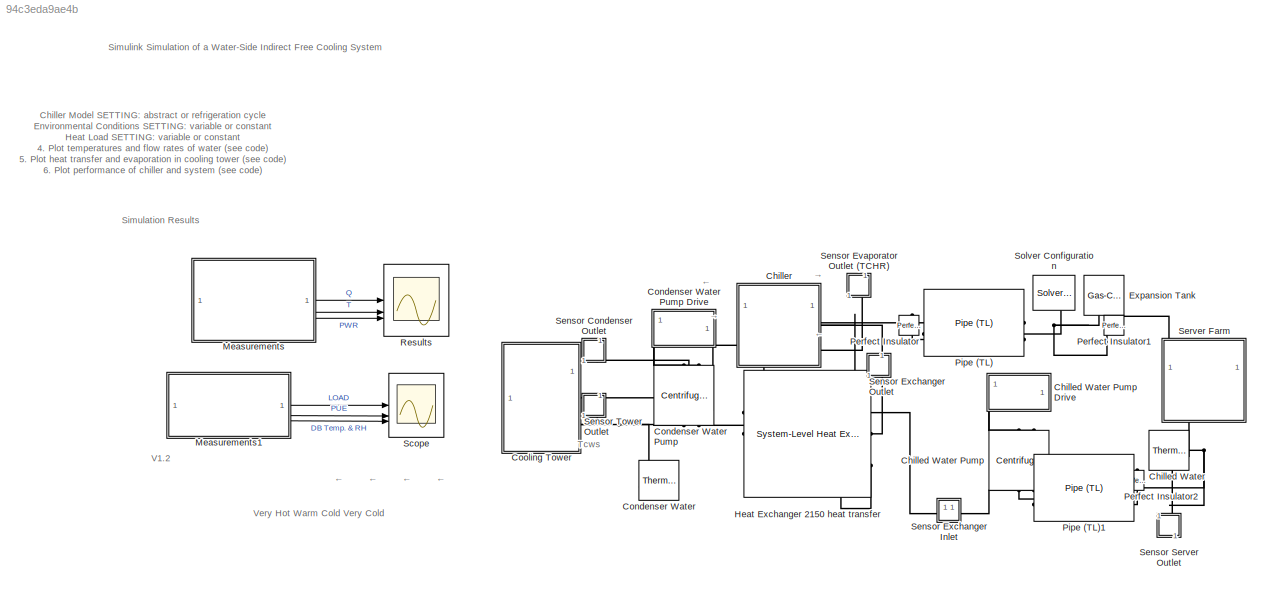
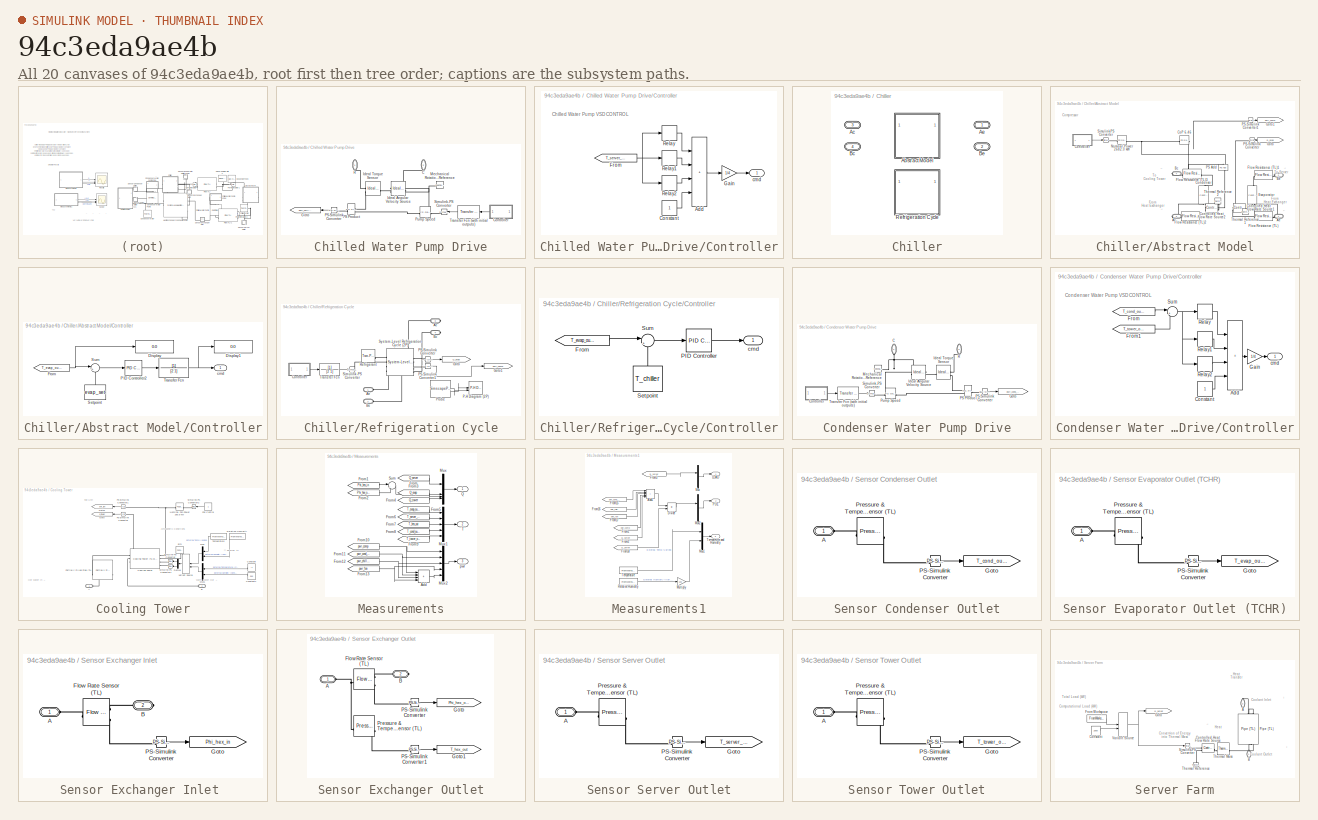
[diagram: thumbnail index - all 20 canvases of the model, root first then tree order]
MODEL slx_94c3eda9ae4b
KIND model
CONFIG AbsTol = 1e-3
CONFIG EnableMultiTasking = off
CONFIG FixedStep = auto
CONFIG MaxStep = auto
CONFIG MinStep = auto
CONFIG PreLoadFcn = load DataCenterCoolingHeatLoad.mat\nload DataCenterCoolingEnviornment.mat\n\n% Chiller Setpoint\nT_chiller = 18; % degC\n\n% Pipes\nserver_pipe_D = 0.02; % m\nserver_pipe_L = 12; % m\nserver_pipe_thickness = 0.002; % m\nserver_num_pipes = 800;\n\n% Material properties\nrho_pipe = 7800; % kg/m^3\ncp_pipe = 500; % J/(kg*K)\n\n% Total connecting port areas\nport_area = 0.2; % m^2\n\n% Cooling tower\nT_reservoir = 23; % ...<+70ch>
CONFIG RelTol = 1e-3
CONFIG SampleTimeConstraint = Unconstrained
CONFIG SolverName = VariableStepAuto
CONFIG StartTime = 0.0
CONFIG StopTime = 4.284e+05
BLOCK [Reference] Chilled Water  REF=SimscapeFluids_lib/Thermal Liquid/Utilities/Thermal Liquid
Properties (TL)
  SourceBlock = SimscapeFluids_lib/Thermal Liquid/Utilities/Thermal Liquid\nProperties (TL)
  SourceType = Thermal Liquid\nProperties (TL)
BLOCK [Reference] Chilled Water Pump  REF=SimscapeFluids_lib/Thermal Liquid/Pumps & Motors/Centrifugal Pump
(TL)
  NameLocation = left
  SourceBlock = SimscapeFluids_lib/Thermal Liquid/Pumps & Motors/Centrifugal Pump\n(TL)
  SourceType = Centrifugal Pump\n(TL)
BLOCK [SubSystem] Chilled Water Pump Drive
  NameLocation = top
  PortSchema = {"entries":[{"content":{"sides":[{"content":{},"type":"ConnectorPlacement.EquallySpacedRectSide","uuid":"edaea338-c02b-45e4-bb82-2d3d355c0ecb"},{"content":{"side":"RIGHT"},"type":"ConnectorPlacement.EquallySpacedRectSide","uuid":"dbf9c5c1-eafd-40d4-aa46-26e8ea9aa192"},{"content":{"connectorIds":["LConn1","LConn2"],"side":"TOP"},"type":"ConnectorPlacement.EquallySpacedRectSide","uuid":"608efdba-9ff...<+211ch>
BLOCK [PMIOPort] Chilled Water Pump Drive/C
  NameLocation = right
  Port = 2
  Side = Left
BLOCK [SubSystem] Chilled Water Pump Drive/Controller
BLOCK [Sum] Chilled Water Pump Drive/Controller/Add
  IconShape = rectangular
  Inputs = ++++
BLOCK [Constant] Chilled Water Pump Drive/Controller/Constant
BLOCK [From] Chilled Water Pump Drive/Controller/From
  GotoTag = T_server_outlet
  TagVisibility = global
BLOCK [Gain] Chilled Water Pump Drive/Controller/Gain
  Gain = 1/4
BLOCK [Relay] Chilled Water Pump Drive/Controller/Relay
  OffSwitchValue = cond_set*0.8571
  OnSwitchValue = cond_set
  ZeroCross = off
BLOCK [Relay] Chilled Water Pump Drive/Controller/Relay1
  OffSwitchValue = cond_set*0.7143
  OnSwitchValue = cond_set*0.8571
  ZeroCross = off
BLOCK [Relay] Chilled Water Pump Drive/Controller/Relay2
  OffSwitchValue = cond_set*0.5714
  OnSwitchValue = cond_set*0.7143
  ZeroCross = off
BLOCK [Outport] Chilled Water Pump Drive/Controller/cmd
BLOCK [Goto] Chilled Water Pump Drive/Goto
  GotoTag = pwr_chilled_water
  TagVisibility = global
BLOCK [Reference] Chilled Water Pump Drive/Ideal Angular Velocity Source  REF=fl_lib/Mechanical/Mechanical Sources/Ideal Angular
Velocity Source
  SourceBlock = fl_lib/Mechanical/Mechanical Sources/Ideal Angular\nVelocity Source
  SourceType = Ideal Angular\nVelocity Source
BLOCK [Reference] Chilled Water Pump Drive/Ideal Torque Sensor  REF=fl_lib/Mechanical/Mechanical Sensors/Ideal Torque Sensor
  SourceBlock = fl_lib/Mechanical/Mechanical Sensors/Ideal Torque Sensor
  SourceType = Ideal Torque Sensor
BLOCK [Reference] Chilled Water Pump Drive/Mechanical Rotational Reference  REF=fl_lib/Mechanical/Rotational Elements/Mechanical
Rotational Reference
  SourceBlock = fl_lib/Mechanical/Rotational Elements/Mechanical\nRotational Reference
  SourceType = Mechanical\nRotational Reference
BLOCK [Reference] Chilled Water Pump Drive/PS Product  REF=fl_lib/Physical Signals/Functions/PS Product
  SourceBlock = fl_lib/Physical Signals/Functions/PS Product
  SourceType = PS Product
BLOCK [Reference] Chilled Water Pump Drive/PS-Simulink Converter  REF=nesl_utility/PS-Simulink
Converter
  SourceBlock = nesl_utility/PS-Simulink\nConverter
  SourceType = PS-Simulink\nConverter
BLOCK [Reference] Chilled Water Pump Drive/Pump Speed  REF=fl_lib/Physical Signals/Functions/PS Gain
  SourceBlock = fl_lib/Physical Signals/Functions/PS Gain
  SourceType = PS Gain
BLOCK [PMIOPort] Chilled Water Pump Drive/R
  NameLocation = right
  Side = Left
BLOCK [Reference] Chilled Water Pump Drive/Simulink-PS Converter  REF=nesl_utility/Simulink-PS
Converter
  SourceBlock = nesl_utility/Simulink-PS\nConverter
  SourceType = Simulink-PS\nConverter
BLOCK [Reference] Chilled Water Pump Drive/Transfer Fcn (with initial outputs)  REF=simulink_extras/Additional
Linear/Transfer Fcn
(with initial outputs)
  SourceBlock = simulink_extras/Additional\nLinear/Transfer Fcn\n(with initial outputs)
  SourceType = Transfer Function with Initial Outputs
BLOCK [SubSystem] Chiller
  AttributesFormatString = %<LabelModeActiveChoice>
  LabelModeActiveChoice = abstract model
  NameLocation = top
  Variant = on
  VariantControlMode = label
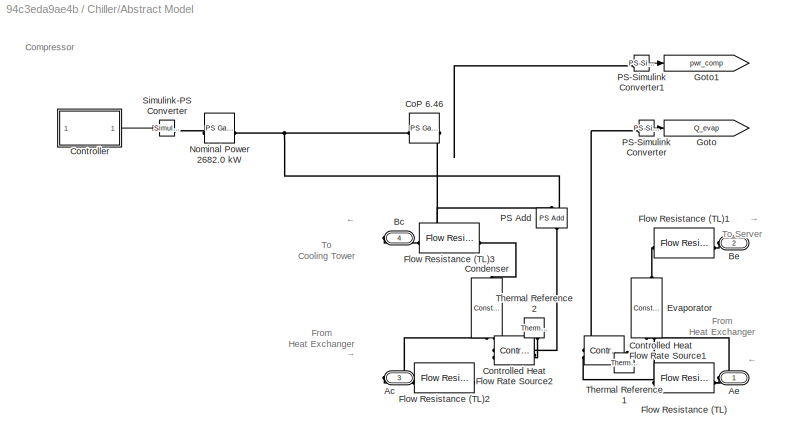
BLOCK [SubSystem] Chiller/Abstract Model
  Tag = PublishSubsystem
  VariantControl = abstract model
BLOCK [PMIOPort] Chiller/Abstract Model/Ac
  Port = 3
  Side = Right
BLOCK [PMIOPort] Chiller/Abstract Model/Ae
  Side = Left
BLOCK [PMIOPort] Chiller/Abstract Model/Bc
  NameLocation = top
  Port = 4
  Side = Right
BLOCK [PMIOPort] Chiller/Abstract Model/Be
  NameLocation = top
  Port = 2
  Side = Left
BLOCK [Reference] Chiller/Abstract Model/CoP 6.46  REF=fl_lib/Physical Signals/Functions/PS Gain
  SourceBlock = fl_lib/Physical Signals/Functions/PS Gain
  SourceType = PS Gain
BLOCK [Reference] Chiller/Abstract Model/Condenser  REF=fl_lib/Thermal Liquid/Elements/Constant Volume
Chamber (TL)
  NameLocation = left
  SourceBlock = fl_lib/Thermal Liquid/Elements/Constant Volume\nChamber (TL)
  SourceType = Constant Volume\nChamber (TL)
BLOCK [Reference] Chiller/Abstract Model/Controlled Heat Flow Rate Source1  REF=fl_lib/Thermal/Thermal Sources/Controlled Heat Flow
Rate Source
  SourceBlock = fl_lib/Thermal/Thermal Sources/Controlled Heat Flow\nRate Source
  SourceType = Controlled Heat Flow\nRate Source
BLOCK [Reference] Chiller/Abstract Model/Controlled Heat Flow Rate Source2  REF=fl_lib/Thermal/Thermal Sources/Controlled Heat Flow
Rate Source
  NameLocation = top
  SourceBlock = fl_lib/Thermal/Thermal Sources/Controlled Heat Flow\nRate Source
  SourceType = Controlled Heat Flow\nRate Source
BLOCK [SubSystem] Chiller/Abstract Model/Controller
BLOCK [Display] Chiller/Abstract Model/Controller/Display
  Decimation = 1
BLOCK [Display] Chiller/Abstract Model/Controller/Display1
  Decimation = 1
BLOCK [From] Chiller/Abstract Model/Controller/From
  GotoTag = T_evap_outlet
  TagVisibility = global
BLOCK [Reference] Chiller/Abstract Model/Controller/PID Controller2  REF=slpidlib/PID Controller
  LibrarySourceBlock = simulink/Continuous/PID Controller
  SourceBlock = slpidlib/PID Controller
  SourceType = PID 1dof
BLOCK [Constant] Chiller/Abstract Model/Controller/Setpoint
  NameLocation = right
  Value = evap_set
BLOCK [Sum] Chiller/Abstract Model/Controller/Sum
  Inputs = |+-
BLOCK [TransferFcn] Chiller/Abstract Model/Controller/Transfer Fcn
  Denominator = [2 1]
BLOCK [Outport] Chiller/Abstract Model/Controller/cmd
BLOCK [Reference] Chiller/Abstract Model/Evaporator  REF=fl_lib/Thermal Liquid/Elements/Constant Volume
Chamber (TL)
  NameLocation = right
  SourceBlock = fl_lib/Thermal Liquid/Elements/Constant Volume\nChamber (TL)
  SourceType = Constant Volume\nChamber (TL)
BLOCK [Reference] Chiller/Abstract Model/Flow Resistance (TL)  REF=fl_lib/Thermal Liquid/Elements/Flow Resistance (TL)
  NameLocation = top
  SourceBlock = fl_lib/Thermal Liquid/Elements/Flow Resistance (TL)
  SourceType = Flow Resistance (TL)
BLOCK [Reference] Chiller/Abstract Model/Flow Resistance (TL)1  REF=fl_lib/Thermal Liquid/Elements/Flow Resistance (TL)
  NameLocation = top
  SourceBlock = fl_lib/Thermal Liquid/Elements/Flow Resistance (TL)
  SourceType = Flow Resistance (TL)
BLOCK [Reference] Chiller/Abstract Model/Flow Resistance (TL)2  REF=fl_lib/Thermal Liquid/Elements/Flow Resistance (TL)
  NameLocation = top
  SourceBlock = fl_lib/Thermal Liquid/Elements/Flow Resistance (TL)
  SourceType = Flow Resistance (TL)
BLOCK [Reference] Chiller/Abstract Model/Flow Resistance (TL)3  REF=fl_lib/Thermal Liquid/Elements/Flow Resistance (TL)
  NameLocation = top
  SourceBlock = fl_lib/Thermal Liquid/Elements/Flow Resistance (TL)
  SourceType = Flow Resistance (TL)
BLOCK [Goto] Chiller/Abstract Model/Goto
  GotoTag = Q_evap
  TagVisibility = global
BLOCK [Goto] Chiller/Abstract Model/Goto1
  GotoTag = pwr_comp
  TagVisibility = global
BLOCK [Reference] Chiller/Abstract Model/Nominal Power 2682.0 kW  REF=fl_lib/Physical Signals/Functions/PS Gain
  SourceBlock = fl_lib/Physical Signals/Functions/PS Gain
  SourceType = PS Gain
BLOCK [Reference] Chiller/Abstract Model/PS Add  REF=fl_lib/Physical Signals/Functions/PS Add
  NameLocation = left
  SourceBlock = fl_lib/Physical Signals/Functions/PS Add
  SourceType = PS Add
BLOCK [Reference] Chiller/Abstract Model/PS-Simulink Converter  REF=nesl_utility/PS-Simulink
Converter
  SourceBlock = nesl_utility/PS-Simulink\nConverter
  SourceType = PS-Simulink\nConverter
BLOCK [Reference] Chiller/Abstract Model/PS-Simulink Converter1  REF=nesl_utility/PS-Simulink
Converter
  SourceBlock = nesl_utility/PS-Simulink\nConverter
  SourceType = PS-Simulink\nConverter
BLOCK [Reference] Chiller/Abstract Model/Simulink-PS Converter  REF=nesl_utility/Simulink-PS
Converter
  SourceBlock = nesl_utility/Simulink-PS\nConverter
  SourceType = Simulink-PS\nConverter
BLOCK [Reference] Chiller/Abstract Model/Thermal Reference1  REF=fl_lib/Thermal/Thermal Elements/Thermal Reference
  NameLocation = right
  SourceBlock = fl_lib/Thermal/Thermal Elements/Thermal Reference
  SourceType = Thermal Reference
BLOCK [Reference] Chiller/Abstract Model/Thermal Reference2  REF=fl_lib/Thermal/Thermal Elements/Thermal Reference
  NameLocation = left
  SourceBlock = fl_lib/Thermal/Thermal Elements/Thermal Reference
  SourceType = Thermal Reference
BLOCK [PMIOPort] Chiller/Ac
  NameLocation = top
  Port = 3
  Side = Right
BLOCK [PMIOPort] Chiller/Ae
  NameLocation = top
  Side = Left
BLOCK [PMIOPort] Chiller/Bc
  NameLocation = top
  Port = 4
  Side = Right
BLOCK [PMIOPort] Chiller/Be
  NameLocation = top
  Port = 2
  Side = Left
BLOCK [SubSystem] Chiller/Refrigeration Cycle
  Tag = PublishSubsystem
  VariantControl = refrigeration cycle
BLOCK [PMIOPort] Chiller/Refrigeration Cycle/Ac
  Port = 3
  Side = Right
BLOCK [PMIOPort] Chiller/Refrigeration Cycle/Ae
  Side = Left
BLOCK [PMIOPort] Chiller/Refrigeration Cycle/Bc
  Port = 4
  Side = Right
BLOCK [PMIOPort] Chiller/Refrigeration Cycle/Be
  Port = 2
  Side = Left
BLOCK [SubSystem] Chiller/Refrigeration Cycle/Controller
BLOCK [From] Chiller/Refrigeration Cycle/Controller/From
  GotoTag = T_evap_outlet
  TagVisibility = global
BLOCK [Reference] Chiller/Refrigeration Cycle/Controller/PID Controller  REF=slpidlib/PID Controller
  LibrarySourceBlock = simulink/Continuous/PID Controller
  SourceBlock = slpidlib/PID Controller
  SourceType = PID 1dof
BLOCK [Constant] Chiller/Refrigeration Cycle/Controller/Setpoint
  NameLocation = right
  Value = T_chiller
BLOCK [Sum] Chiller/Refrigeration Cycle/Controller/Sum
  Inputs = |+-
BLOCK [Outport] Chiller/Refrigeration Cycle/Controller/cmd
BLOCK [Goto] Chiller/Refrigeration Cycle/Goto
  GotoTag = Q_evap
  TagVisibility = global
BLOCK [Goto] Chiller/Refrigeration Cycle/Goto1
  GotoTag = pwr_comp
  TagVisibility = global
BLOCK [Reference] Chiller/Refrigeration Cycle/P-H Diagram (2P)  REF=SimscapeFluids_lib/Two-Phase Fluid/Utilities/P-H Diagram (2P)
  SourceBlock = SimscapeFluids_lib/Two-Phase Fluid/Utilities/P-H Diagram (2P)
  SourceType = P-H Diagram (2P)
  UserDataPersistent = on
BLOCK [Reference] Chiller/Refrigeration Cycle/PS-Simulink Converter  REF=nesl_utility/PS-Simulink
Converter
  SourceBlock = nesl_utility/PS-Simulink\nConverter
  SourceType = PS-Simulink\nConverter
BLOCK [Reference] Chiller/Refrigeration Cycle/PS-Simulink Converter1  REF=nesl_utility/PS-Simulink
Converter
  SourceBlock = nesl_utility/PS-Simulink\nConverter
  SourceType = PS-Simulink\nConverter
BLOCK [SimscapeProbe] Chiller/Refrigeration Cycle/Probe
  BoundBlock = 48
  Variables = {h_cycle, p_cycle}
BLOCK [Reference] Chiller/Refrigeration Cycle/Refrigerant  REF=SimscapeFluids_lib/Two-Phase Fluid/Utilities/Two-Phase Fluid
Predefined
Properties (2P)
  SourceBlock = SimscapeFluids_lib/Two-Phase Fluid/Utilities/Two-Phase Fluid\nPredefined\nProperties (2P)
  SourceType = Two-Phase Fluid\nPredefined\nProperties (2P)
BLOCK [Reference] Chiller/Refrigeration Cycle/Simulink-PS Converter  REF=nesl_utility/Simulink-PS
Converter
  SourceBlock = nesl_utility/Simulink-PS\nConverter
  SourceType = Simulink-PS\nConverter
BLOCK [Reference] Chiller/Refrigeration Cycle/System-Level Refrigeration Cycle (2P)  REF=SimscapeFluids_lib/Two-Phase Fluid/Thermodynamic Cycles/System-Level
Refrigeration Cycle
(2P)
  SourceBlock = SimscapeFluids_lib/Two-Phase Fluid/Thermodynamic Cycles/System-Level\nRefrigeration Cycle\n(2P)
  SourceType = System-Level\nRefrigeration Cycle\n(2P)
BLOCK [TransferFcn] Chiller/Refrigeration Cycle/Transfer Fcn
  Denominator = [2 1]
BLOCK [Reference] Condenser Water  REF=SimscapeFluids_lib/Thermal Liquid/Utilities/Thermal Liquid
Properties (TL)
  SourceBlock = SimscapeFluids_lib/Thermal Liquid/Utilities/Thermal Liquid\nProperties (TL)
  SourceType = Thermal Liquid\nProperties (TL)
BLOCK [Reference] Condenser Water Pump  REF=SimscapeFluids_lib/Thermal Liquid/Pumps & Motors/Centrifugal Pump
(TL)
  NameLocation = left
  SourceBlock = SimscapeFluids_lib/Thermal Liquid/Pumps & Motors/Centrifugal Pump\n(TL)
  SourceType = Centrifugal Pump\n(TL)
BLOCK [SubSystem] Condenser Water Pump Drive
  NameLocation = top
  PortSchema = {"entries":[{"content":{"sides":[{"content":{},"type":"ConnectorPlacement.EquallySpacedRectSide","uuid":"edaea338-c02b-45e4-bb82-2d3d355c0ecb"},{"content":{"side":"RIGHT"},"type":"ConnectorPlacement.EquallySpacedRectSide","uuid":"dbf9c5c1-eafd-40d4-aa46-26e8ea9aa192"},{"content":{"connectorIds":["LConn1","LConn2"],"side":"TOP"},"type":"ConnectorPlacement.EquallySpacedRectSide","uuid":"608efdba-9ff...<+211ch>
BLOCK [PMIOPort] Condenser Water Pump Drive/C
  NameLocation = right
  Side = Left
BLOCK [SubSystem] Condenser Water Pump Drive/Controller
BLOCK [Sum] Condenser Water Pump Drive/Controller/Add
  IconShape = rectangular
  Inputs = ++++
BLOCK [Constant] Condenser Water Pump Drive/Controller/Constant
BLOCK [From] Condenser Water Pump Drive/Controller/From
  GotoTag = T_cond_outlet
  TagVisibility = global
BLOCK [From] Condenser Water Pump Drive/Controller/From1
  GotoTag = T_tower_outlet
  TagVisibility = global
BLOCK [Gain] Condenser Water Pump Drive/Controller/Gain
  Gain = 1/4
BLOCK [Relay] Condenser Water Pump Drive/Controller/Relay
  OffSwitchValue = 0.667*(cond_set - (evap_set+0.4*(cond_set-evap_set)))
  OnSwitchValue = cond_set - (evap_set+0.4*(cond_set-evap_set))
  ZeroCross = off
BLOCK [Relay] Condenser Water Pump Drive/Controller/Relay1
  OffSwitchValue = 0.333*(cond_set - (evap_set+0.4*(cond_set-evap_set)))
  OnSwitchValue = 0.667*(cond_set - (evap_set+0.4*(cond_set-evap_set)))
  ZeroCross = off
BLOCK [Relay] Condenser Water Pump Drive/Controller/Relay2
  OffSwitchValue = 0
  OnSwitchValue = 0.333*(cond_set - (evap_set+0.4*(cond_set-evap_set)))
  ZeroCross = off
BLOCK [Sum] Condenser Water Pump Drive/Controller/Sum
  Inputs = |+-
BLOCK [Outport] Condenser Water Pump Drive/Controller/cmd
BLOCK [Goto] Condenser Water Pump Drive/Goto
  GotoTag = pwr_cond_water
  TagVisibility = global
BLOCK [Reference] Condenser Water Pump Drive/Ideal Angular Velocity Source  REF=fl_lib/Mechanical/Mechanical Sources/Ideal Angular
Velocity Source
  SourceBlock = fl_lib/Mechanical/Mechanical Sources/Ideal Angular\nVelocity Source
  SourceType = Ideal Angular\nVelocity Source
BLOCK [Reference] Condenser Water Pump Drive/Ideal Torque Sensor  REF=fl_lib/Mechanical/Mechanical Sensors/Ideal Torque Sensor
  SourceBlock = fl_lib/Mechanical/Mechanical Sensors/Ideal Torque Sensor
  SourceType = Ideal Torque Sensor
BLOCK [Reference] Condenser Water Pump Drive/Mechanical Rotational Reference  REF=fl_lib/Mechanical/Rotational Elements/Mechanical
Rotational Reference
  SourceBlock = fl_lib/Mechanical/Rotational Elements/Mechanical\nRotational Reference
  SourceType = Mechanical\nRotational Reference
BLOCK [Reference] Condenser Water Pump Drive/PS Product  REF=fl_lib/Physical Signals/Functions/PS Product
  SourceBlock = fl_lib/Physical Signals/Functions/PS Product
  SourceType = PS Product
BLOCK [Reference] Condenser Water Pump Drive/PS-Simulink Converter  REF=nesl_utility/PS-Simulink
Converter
  SourceBlock = nesl_utility/PS-Simulink\nConverter
  SourceType = PS-Simulink\nConverter
BLOCK [Reference] Condenser Water Pump Drive/Pump Speed  REF=fl_lib/Physical Signals/Functions/PS Gain
  SourceBlock = fl_lib/Physical Signals/Functions/PS Gain
  SourceType = PS Gain
BLOCK [PMIOPort] Condenser Water Pump Drive/R
  NameLocation = right
  Port = 2
  Side = Left
BLOCK [Reference] Condenser Water Pump Drive/Simulink-PS Converter  REF=nesl_utility/Simulink-PS
Converter
  SourceBlock = nesl_utility/Simulink-PS\nConverter
  SourceType = Simulink-PS\nConverter
BLOCK [Reference] Condenser Water Pump Drive/Transfer Fcn (with initial outputs)  REF=simulink_extras/Additional
Linear/Transfer Fcn
(with initial outputs)
  SourceBlock = simulink_extras/Additional\nLinear/Transfer Fcn\n(with initial outputs)
  SourceType = Transfer Function with Initial Outputs
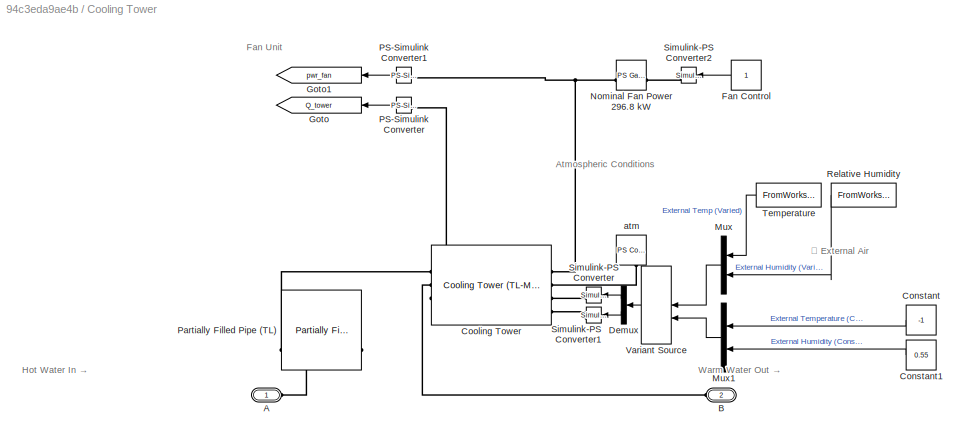
BLOCK [SubSystem] Cooling Tower
  AttributesFormatString = variable environment
  InitFcn = set_param(gcb, 'AttributesFormatString', get_param([gcb '/Variant Source'], 'LabelModeActiveChoice'))
  Tag = PublishSubsystem
BLOCK [PMIOPort] Cooling Tower/A
  Side = Left
BLOCK [PMIOPort] Cooling Tower/B
  Port = 2
  Side = Left
BLOCK [Constant] Cooling Tower/Constant
  Value = -1
BLOCK [Constant] Cooling Tower/Constant1
  Value = 0.55
BLOCK [Reference] Cooling Tower/Cooling Tower  REF=SimscapeFluids_lib/Heat Exchangers/Thermal Liquid -
Moist Air/Cooling Tower
(TL-MA)
  SourceBlock = SimscapeFluids_lib/Heat Exchangers/Thermal Liquid -\nMoist Air/Cooling Tower\n(TL-MA)
  SourceType = Cooling Tower\n(TL-MA)
BLOCK [Demux] Cooling Tower/Demux
  Outputs = 2
BLOCK [Constant] Cooling Tower/Fan Control
BLOCK [Goto] Cooling Tower/Goto
  GotoTag = Q_tower
  TagVisibility = global
BLOCK [Goto] Cooling Tower/Goto1
  GotoTag = pwr_fan
  TagVisibility = global
BLOCK [Mux] Cooling Tower/Mux
  DisplayOption = bar
  Inputs = 2
BLOCK [Mux] Cooling Tower/Mux1
  DisplayOption = bar
  Inputs = 2
BLOCK [Reference] Cooling Tower/Nominal Fan Power 296.8 kW  REF=fl_lib/Physical Signals/Functions/PS Gain
  SourceBlock = fl_lib/Physical Signals/Functions/PS Gain
  SourceType = PS Gain
BLOCK [Reference] Cooling Tower/PS-Simulink Converter  REF=nesl_utility/PS-Simulink
Converter
  SourceBlock = nesl_utility/PS-Simulink\nConverter
  SourceType = PS-Simulink\nConverter
BLOCK [Reference] Cooling Tower/PS-Simulink Converter1  REF=nesl_utility/PS-Simulink
Converter
  SourceBlock = nesl_utility/PS-Simulink\nConverter
  SourceType = PS-Simulink\nConverter
BLOCK [Reference] Cooling Tower/Partially Filled Pipe (TL)  REF=SimscapeFluids_lib/Thermal Liquid/Pipes & Fittings/Partially Filled
Pipe (TL)
  SourceBlock = SimscapeFluids_lib/Thermal Liquid/Pipes & Fittings/Partially Filled\nPipe (TL)
  SourceType = Partially Filled\nPipe (TL)
BLOCK [FromWorkspace] Cooling Tower/Relative Humidity
  NameLocation = right
  OutputAfterFinalValue = Holding final value
  VariableName = environment(:,2)
BLOCK [Reference] Cooling Tower/Simulink-PS Converter  REF=nesl_utility/Simulink-PS
Converter
  SourceBlock = nesl_utility/Simulink-PS\nConverter
  SourceType = Simulink-PS\nConverter
BLOCK [Reference] Cooling Tower/Simulink-PS Converter1  REF=nesl_utility/Simulink-PS
Converter
  SourceBlock = nesl_utility/Simulink-PS\nConverter
  SourceType = Simulink-PS\nConverter
BLOCK [Reference] Cooling Tower/Simulink-PS Converter2  REF=nesl_utility/Simulink-PS
Converter
  SourceBlock = nesl_utility/Simulink-PS\nConverter
  SourceType = Simulink-PS\nConverter
BLOCK [FromWorkspace] Cooling Tower/Temperature
  NameLocation = right
  OutputAfterFinalValue = Holding final value
  VariableName = environment(:,1)
BLOCK [VariantSource] Cooling Tower/Variant Source
  AttributesFormatString = %<LabelModeActiveChoice>
  LabelModeActiveChoice = variable environment
  VariantControlMode = label
BLOCK [Reference] Cooling Tower/atm  REF=fl_lib/Physical Signals/Sources/PS Constant
  NameLocation = right
  SourceBlock = fl_lib/Physical Signals/Sources/PS Constant
  SourceType = PS Constant
BLOCK [Reference] Expansion Tank  REF=SimscapeFluids_lib/Thermal Liquid/Tanks & Accumulators/Gas-Charged
Accumulator (TL)
  NameLocation = top
  SourceBlock = SimscapeFluids_lib/Thermal Liquid/Tanks & Accumulators/Gas-Charged\nAccumulator (TL)
  SourceType = Gas-Charged\nAccumulator (TL)
BLOCK [Reference] Heat Exchanger 2150 heat transfer  REF=SimscapeFluids_lib/Heat Exchangers/Thermal Liquid/System-Level Heat
Exchanger (TL-TL)
  SourceBlock = SimscapeFluids_lib/Heat Exchangers/Thermal Liquid/System-Level Heat\nExchanger (TL-TL)
  SourceType = System-Level Heat\nExchanger (TL-TL)
BLOCK [SubSystem] Measurements
BLOCK [Sum] Measurements/Add
  IconShape = rectangular
  Inputs = ++++
BLOCK [From] Measurements/From
  GotoTag = Q_server
  TagVisibility = global
BLOCK [From] Measurements/From1
  GotoTag = Phi_hex_in
  TagVisibility = global
BLOCK [From] Measurements/From10
  GotoTag = pwr_comp
  TagVisibility = global
BLOCK [From] Measurements/From11
  GotoTag = pwr_cond_water
  TagVisibility = global
BLOCK [From] Measurements/From12
  GotoTag = pwr_chilled_water
  TagVisibility = global
BLOCK [From] Measurements/From13
  GotoTag = pwr_fan
  TagVisibility = global
BLOCK [From] Measurements/From2
  GotoTag = Phi_hex_out
  TagVisibility = global
BLOCK [From] Measurements/From3
  GotoTag = Q_evap
  TagVisibility = global
BLOCK [From] Measurements/From4
  GotoTag = Q_tower
  TagVisibility = global
BLOCK [From] Measurements/From5
  GotoTag = T_evap_outlet
  TagVisibility = global
BLOCK [From] Measurements/From6
  GotoTag = T_server_outlet
  TagVisibility = global
BLOCK [From] Measurements/From7
  GotoTag = T_hex_out
  TagVisibility = global
BLOCK [From] Measurements/From8
  GotoTag = T_cond_outlet
  TagVisibility = global
BLOCK [From] Measurements/From9
  GotoTag = T_tower_outlet
  TagVisibility = global
BLOCK [Mux] Measurements/Mux
  DisplayOption = bar
BLOCK [Mux] Measurements/Mux1
  DisplayOption = bar
  Inputs = 5
BLOCK [Mux] Measurements/Mux2
  DisplayOption = bar
  Inputs = 5
BLOCK [Outport] Measurements/Q
BLOCK [Sum] Measurements/Sum
  Inputs = |+-
BLOCK [Outport] Measurements/T
  Port = 2
BLOCK [Outport] Measurements/pwr
  Port = 3
BLOCK [SubSystem] Measurements1
BLOCK [Sum] Measurements1/Add1
  IconShape = rectangular
  Inputs = +++++
BLOCK [Product] Measurements1/Divide
  Inputs = */
BLOCK [From] Measurements1/From1
  GotoTag = pwr_comp
  TagVisibility = global
BLOCK [From] Measurements1/From14
  GotoTag = Q_server
  TagVisibility = global
BLOCK [From] Measurements1/From15
  GotoTag = pwr_cond_water
  TagVisibility = global
BLOCK [From] Measurements1/From16
  GotoTag = pwr_chilled_water
  TagVisibility = global
BLOCK [From] Measurements1/From17
  GotoTag = pwr_fan
  TagVisibility = global
BLOCK [From] Measurements1/From2
  GotoTag = Q_server
  TagVisibility = global
BLOCK [From] Measurements1/From3
  GotoTag = Q_server
  TagVisibility = global
BLOCK [Outport] Measurements1/LOAD
BLOCK [Gain] Measurements1/Multiply
  Gain = 100
BLOCK [Mux] Measurements1/Mux
  DisplayOption = bar
  Inputs = 1
BLOCK [Mux] Measurements1/Mux1
  DisplayOption = bar
  Inputs = 2
BLOCK [Mux] Measurements1/Mux2
  DisplayOption = bar
  Inputs = 1
BLOCK [Outport] Measurements1/PUE
  Port = 2
BLOCK [FromWorkspace] Measurements1/Relative Humidity
  NameLocation = left
  OutputAfterFinalValue = Holding final value
  VariableName = environment(:,2)
BLOCK [FromWorkspace] Measurements1/Temperature
  NameLocation = left
  OutputAfterFinalValue = Holding final value
  VariableName = environment(:,1)
BLOCK [Outport] Measurements1/Temperature and Humidity
  Port = 3
BLOCK [Reference] Perfect Insulator  REF=fl_lib/Thermal/Thermal Elements/Perfect Insulator
  NameLocation = left
  SourceBlock = fl_lib/Thermal/Thermal Elements/Perfect Insulator
  SourceType = Perfect Insulator
BLOCK [Reference] Perfect Insulator1  REF=fl_lib/Thermal/Thermal Elements/Perfect Insulator
  NameLocation = right
  SourceBlock = fl_lib/Thermal/Thermal Elements/Perfect Insulator
  SourceType = Perfect Insulator
BLOCK [Reference] Perfect Insulator2  REF=fl_lib/Thermal/Thermal Elements/Perfect Insulator
  NameLocation = right
  SourceBlock = fl_lib/Thermal/Thermal Elements/Perfect Insulator
  SourceType = Perfect Insulator
BLOCK [Reference] Pipe (TL)  REF=SimscapeFluids_lib/Thermal Liquid/Pipes & Fittings/Pipe (TL)
  NameLocation = top
  SourceBlock = SimscapeFluids_lib/Thermal Liquid/Pipes & Fittings/Pipe (TL)
  SourceType = Pipe (TL)
BLOCK [Reference] Pipe (TL)1  REF=SimscapeFluids_lib/Thermal Liquid/Pipes & Fittings/Pipe (TL)
  NameLocation = top
  SourceBlock = SimscapeFluids_lib/Thermal Liquid/Pipes & Fittings/Pipe (TL)
  SourceType = Pipe (TL)
BLOCK [Scope] Results
  AttributesFormatString = Time = %<XLabel>
  Floating = off
  NumInputPorts = 3
  ScopeSpecificationString = Simulink.scopes.TimeScopeBlockCfg('CurrentConfiguration', extmgr.ConfigurationSet(extmgr.Configuration('Core','General UI',true,'FigureColor',[1 1 1]),extmgr.Configuration('Core','Source UI',true),extmgr.Configuration('Sources','WiredSimulink',true,'DataLogging',true,'DataLoggingVariableName','Scope1DataQTpwr'),extmgr.Configuration('Visuals','Time Domain',true,'SerializedDisplays',{struct('MinYLim...<+4990ch>
  Tag = PublishScope
BLOCK [Scope] Scope
  Floating = off
  NumInputPorts = 3
  ScopeSpecificationString = Simulink.scopes.TimeScopeBlockCfg('CurrentConfiguration', extmgr.ConfigurationSet(extmgr.Configuration('Core','General UI',true,'FigureColor',[1 1 1]),extmgr.Configuration('Core','Source UI',true),extmgr.Configuration('Sources','WiredSimulink',true,'DataLoggingVariableName','ScopeData1'),extmgr.Configuration('Visuals','Time Domain',true,'SerializedDisplays',{struct('MinYLimReal','1050.00000','MaxY...<+3706ch>
BLOCK [SubSystem] Sensor Condenser Outlet
  NameLocation = right
BLOCK [PMIOPort] Sensor Condenser Outlet/A
  Side = Left
BLOCK [Goto] Sensor Condenser Outlet/Goto
  GotoTag = T_cond_outlet
  TagVisibility = global
BLOCK [Reference] Sensor Condenser Outlet/PS-Simulink Converter  REF=nesl_utility/PS-Simulink
Converter
  SourceBlock = nesl_utility/PS-Simulink\nConverter
  SourceType = PS-Simulink\nConverter
BLOCK [Reference] Sensor Condenser Outlet/Pressure & Temperature Sensor (TL)  REF=fl_lib/Thermal Liquid/Sensors/Pressure &
Temperature Sensor
(TL)
  SourceBlock = fl_lib/Thermal Liquid/Sensors/Pressure &\nTemperature Sensor\n(TL)
  SourceType = Pressure &\nTemperature Sensor\n(TL)
BLOCK [SubSystem] Sensor Evaporator Outlet (TCHR)
  NameLocation = right
BLOCK [PMIOPort] Sensor Evaporator Outlet (TCHR)/A
  Side = Left
BLOCK [Goto] Sensor Evaporator Outlet (TCHR)/Goto
  GotoTag = T_evap_outlet
  TagVisibility = global
BLOCK [Reference] Sensor Evaporator Outlet (TCHR)/PS-Simulink Converter  REF=nesl_utility/PS-Simulink
Converter
  SourceBlock = nesl_utility/PS-Simulink\nConverter
  SourceType = PS-Simulink\nConverter
BLOCK [Reference] Sensor Evaporator Outlet (TCHR)/Pressure & Temperature Sensor (TL)  REF=fl_lib/Thermal Liquid/Sensors/Pressure &
Temperature Sensor
(TL)
  SourceBlock = fl_lib/Thermal Liquid/Sensors/Pressure &\nTemperature Sensor\n(TL)
  SourceType = Pressure &\nTemperature Sensor\n(TL)
BLOCK [SubSystem] Sensor Exchanger Inlet 
BLOCK [PMIOPort] Sensor Exchanger Inlet /A
  Side = Left
BLOCK [PMIOPort] Sensor Exchanger Inlet /B
  Port = 2
  Side = Right
BLOCK [Reference] Sensor Exchanger Inlet /Flow Rate Sensor (TL)  REF=fl_lib/Thermal Liquid/Sensors/Flow Rate Sensor
(TL)
  SourceBlock = fl_lib/Thermal Liquid/Sensors/Flow Rate Sensor\n(TL)
  SourceType = Flow Rate Sensor\n(TL)
BLOCK [Goto] Sensor Exchanger Inlet /Goto
  GotoTag = Phi_hex_in
  TagVisibility = global
BLOCK [Reference] Sensor Exchanger Inlet /PS-Simulink Converter  REF=nesl_utility/PS-Simulink
Converter
  SourceBlock = nesl_utility/PS-Simulink\nConverter
  SourceType = PS-Simulink\nConverter
BLOCK [SubSystem] Sensor Exchanger Outlet
  NameLocation = left
BLOCK [PMIOPort] Sensor Exchanger Outlet/A
  Side = Left
BLOCK [PMIOPort] Sensor Exchanger Outlet/B
  Port = 2
  Side = Right
BLOCK [Reference] Sensor Exchanger Outlet/Flow Rate Sensor (TL)  REF=fl_lib/Thermal Liquid/Sensors/Flow Rate Sensor
(TL)
  SourceBlock = fl_lib/Thermal Liquid/Sensors/Flow Rate Sensor\n(TL)
  SourceType = Flow Rate Sensor\n(TL)
BLOCK [Goto] Sensor Exchanger Outlet/Goto
  GotoTag = Phi_hex_out
  TagVisibility = global
BLOCK [Goto] Sensor Exchanger Outlet/Goto1
  GotoTag = T_hex_out
  TagVisibility = global
BLOCK [Reference] Sensor Exchanger Outlet/PS-Simulink Converter  REF=nesl_utility/PS-Simulink
Converter
  SourceBlock = nesl_utility/PS-Simulink\nConverter
  SourceType = PS-Simulink\nConverter
BLOCK [Reference] Sensor Exchanger Outlet/PS-Simulink Converter1  REF=nesl_utility/PS-Simulink
Converter
  SourceBlock = nesl_utility/PS-Simulink\nConverter
  SourceType = PS-Simulink\nConverter
BLOCK [Reference] Sensor Exchanger Outlet/Pressure & Temperature Sensor (TL)  REF=fl_lib/Thermal Liquid/Sensors/Pressure &
Temperature Sensor
(TL)
  SourceBlock = fl_lib/Thermal Liquid/Sensors/Pressure &\nTemperature Sensor\n(TL)
  SourceType = Pressure &\nTemperature Sensor\n(TL)
BLOCK [SubSystem] Sensor Server Outlet
  NameLocation = left
BLOCK [PMIOPort] Sensor Server Outlet/A
  Side = Left
BLOCK [Goto] Sensor Server Outlet/Goto
  GotoTag = T_server_outlet
  TagVisibility = global
BLOCK [Reference] Sensor Server Outlet/PS-Simulink Converter  REF=nesl_utility/PS-Simulink
Converter
  SourceBlock = nesl_utility/PS-Simulink\nConverter
  SourceType = PS-Simulink\nConverter
BLOCK [Reference] Sensor Server Outlet/Pressure & Temperature Sensor (TL)  REF=fl_lib/Thermal Liquid/Sensors/Pressure &
Temperature Sensor
(TL)
  SourceBlock = fl_lib/Thermal Liquid/Sensors/Pressure &\nTemperature Sensor\n(TL)
  SourceType = Pressure &\nTemperature Sensor\n(TL)
BLOCK [SubSystem] Sensor Tower Outlet
  NameLocation = top
BLOCK [PMIOPort] Sensor Tower Outlet/A
  Side = Left
BLOCK [Goto] Sensor Tower Outlet/Goto
  GotoTag = T_tower_outlet
  TagVisibility = global
BLOCK [Reference] Sensor Tower Outlet/PS-Simulink Converter  REF=nesl_utility/PS-Simulink
Converter
  SourceBlock = nesl_utility/PS-Simulink\nConverter
  SourceType = PS-Simulink\nConverter
BLOCK [Reference] Sensor Tower Outlet/Pressure & Temperature Sensor (TL)  REF=fl_lib/Thermal Liquid/Sensors/Pressure &
Temperature Sensor
(TL)
  SourceBlock = fl_lib/Thermal Liquid/Sensors/Pressure &\nTemperature Sensor\n(TL)
  SourceType = Pressure &\nTemperature Sensor\n(TL)
BLOCK [SubSystem] Server Farm
  AttributesFormatString = constant load
  InitFcn = set_param(gcb, 'AttributesFormatString', get_param([gcb '/Variant Source'], 'LabelModeActiveChoice'))
  NameLocation = left
  PortSchema = {"entries":[{"content":{"sides":[{"content":{},"type":"ConnectorPlacement.EquallySpacedRectSide","uuid":"edaea338-c02b-45e4-bb82-2d3d355c0ecb"},{"content":{"side":"RIGHT"},"type":"ConnectorPlacement.EquallySpacedRectSide","uuid":"dbf9c5c1-eafd-40d4-aa46-26e8ea9aa192"},{"content":{"connectorIds":["LConn1"],"side":"TOP"},"type":"ConnectorPlacement.EquallySpacedRectSide","uuid":"608efdba-9ff5-4da4-84...<+354ch>
  Tag = PublishSubsystem
BLOCK [PMIOPort] Server Farm/A
  NameLocation = left
  Port = 2
  Side = Right
BLOCK [PMIOPort] Server Farm/B
  NameLocation = left
  Side = Left
BLOCK [Constant] Server Farm/Constant
  Value = 2050
BLOCK [Reference] Server Farm/Controlled Heat Flow Rate Source  REF=fl_lib/Thermal/Thermal Sources/Controlled Heat Flow
Rate Source
  SourceBlock = fl_lib/Thermal/Thermal Sources/Controlled Heat Flow\nRate Source
  SourceType = Controlled Heat Flow\nRate Source
BLOCK [FromWorkspace] Server Farm/From Workspace
  OutputAfterFinalValue = Holding final value
  VariableName = heat_load
BLOCK [Goto] Server Farm/Goto
  GotoTag = Q_server
  TagVisibility = global
BLOCK [Reference] Server Farm/Pipe (TL)  REF=SimscapeFluids_lib/Thermal Liquid/Pipes & Fittings/Pipe (TL)
  NameLocation = left
  SourceBlock = SimscapeFluids_lib/Thermal Liquid/Pipes & Fittings/Pipe (TL)
  SourceType = Pipe (TL)
BLOCK [Reference] Server Farm/Simulink-PS Converter  REF=nesl_utility/Simulink-PS
Converter
  SourceBlock = nesl_utility/Simulink-PS\nConverter
  SourceType = Simulink-PS\nConverter
BLOCK [Reference] Server Farm/Thermal Mass  REF=fl_lib/Thermal/Thermal Elements/Thermal Mass
  SourceBlock = fl_lib/Thermal/Thermal Elements/Thermal Mass
  SourceType = Thermal Mass
BLOCK [Reference] Server Farm/Thermal Reference  REF=fl_lib/Thermal/Thermal Elements/Thermal Reference
  NameLocation = right
  SourceBlock = fl_lib/Thermal/Thermal Elements/Thermal Reference
  SourceType = Thermal Reference
BLOCK [VariantSource] Server Farm/Variant Source
  AttributesFormatString = %<LabelModeActiveChoice>
  LabelModeActiveChoice = constant load
  VariantControlMode = label
BLOCK [Reference] Solver Configuration  REF=nesl_utility/Solver
Configuration
  NameLocation = left
  SourceBlock = nesl_utility/Solver\nConfiguration
  SourceType = Solver\nConfiguration
ANNOTATION (root): →
ANNOTATION (root): Very Hot Warm Cold Very Cold
ANNOTATION (root): Chiller Model SETTING: abstract or refrigeration cycle Environmental Conditions SETTING: variable or constant Heat Load SETTING: variable or constant 4. Plot temperatures and flow rates of water ( see code ) 5. Plot heat transfer and evaporation in cooling tower ( see code ) 6. Plot performance of chiller and system ( see code ) 7. Explore simulation results using Simscape Results Explorer
ANNOTATION (root): ←
ANNOTATION (root): V1.2
ANNOTATION (root): Simulink Simulation of a Water-Side Indirect Free Cooling System
ANNOTATION (root): Simulation Results
ANNOTATION (root): Tcws
ANNOTATION Chilled Water Pump Drive/Controller: Chilled Water Pump VSD CONTROL
ANNOTATION Chiller/Abstract Model: →
ANNOTATION Chiller/Abstract Model: To Cooling Tower
ANNOTATION Chiller/Abstract Model: From Heat Exchanger
ANNOTATION Chiller/Abstract Model: ←
ANNOTATION Chiller/Abstract Model: Compressor
ANNOTATION Chiller/Abstract Model: To Server
ANNOTATION Condenser Water Pump Drive/Controller: Condenser Water Pump VSD CONTROL
ANNOTATION Cooling Tower: Fan Unit
ANNOTATION Cooling Tower: Hot Water In →
ANNOTATION Cooling Tower: Warm Water Out →
ANNOTATION Cooling Tower: ⇐ External Air
ANNOTATION Cooling Tower: Atmospheric Conditions
ANNOTATION Server Farm: ↓
ANNOTATION Server Farm: →
ANNOTATION Server Farm: Computational Load (kW)
ANNOTATION Server Farm: Conversion of Energy into Thermal Mass
ANNOTATION Server Farm: Coolant Inlet
ANNOTATION Server Farm: Coolant Outlet
ANNOTATION Server Farm: Heat
ANNOTATION Server Farm: Heat Transfer
ANNOTATION Server Farm: Total Load (kW)
LINE Chilled Water Pump Drive/Controller/Add:1 -> Chilled Water Pump Drive/Controller/Gain:1
LINE Chilled Water Pump Drive/Controller/Constant:1 -> Chilled Water Pump Drive/Controller/Add:4
NET Chilled Water Pump Drive/Controller/From:1 -> Chilled Water Pump Drive/Controller/Relay1:1, Chilled Water Pump Drive/Controller/Relay2:1, Chilled Water Pump Drive/Controller/Relay:1
LINE Chilled Water Pump Drive/Controller/Gain:1 -> Chilled Water Pump Drive/Controller/cmd:1
LINE Chilled Water Pump Drive/Controller/Relay1:1 -> Chilled Water Pump Drive/Controller/Add:2
LINE Chilled Water Pump Drive/Controller/Relay2:1 -> Chilled Water Pump Drive/Controller/Add:3
LINE Chilled Water Pump Drive/Controller/Relay:1 -> Chilled Water Pump Drive/Controller/Add:1
LINE Chilled Water Pump Drive/Controller:1 -> Chilled Water Pump Drive/Transfer Fcn (with initial outputs):1
LINE Chilled Water Pump Drive/PS-Simulink Converter:1 -> Chilled Water Pump Drive/Goto:1
LINE Chilled Water Pump Drive/Transfer Fcn (with initial outputs):1 -> Chilled Water Pump Drive/Simulink-PS Converter:1
NET Chiller/Abstract Model/Controller/From:1 -> Chiller/Abstract Model/Controller/Display:1, Chiller/Abstract Model/Controller/Sum:1
LINE Chiller/Abstract Model/Controller/PID Controller2:1 -> Chiller/Abstract Model/Controller/Transfer Fcn:1
LINE Chiller/Abstract Model/Controller/Setpoint:1 -> Chiller/Abstract Model/Controller/Sum:2
LINE Chiller/Abstract Model/Controller/Sum:1 -> Chiller/Abstract Model/Controller/PID Controller2:1
NET Chiller/Abstract Model/Controller/Transfer Fcn:1 -> Chiller/Abstract Model/Controller/Display1:1, Chiller/Abstract Model/Controller/cmd:1
LINE Chiller/Abstract Model/Controller:1 -> Chiller/Abstract Model/Simulink-PS Converter:1
LINE Chiller/Abstract Model/PS-Simulink Converter1:1 -> Chiller/Abstract Model/Goto1:1
LINE Chiller/Abstract Model/PS-Simulink Converter:1 -> Chiller/Abstract Model/Goto:1
LINE Chiller/Refrigeration Cycle/Controller/From:1 -> Chiller/Refrigeration Cycle/Controller/Sum:1
LINE Chiller/Refrigeration Cycle/Controller/PID Controller:1 -> Chiller/Refrigeration Cycle/Controller/cmd:1
LINE Chiller/Refrigeration Cycle/Controller/Setpoint:1 -> Chiller/Refrigeration Cycle/Controller/Sum:2
LINE Chiller/Refrigeration Cycle/Controller/Sum:1 -> Chiller/Refrigeration Cycle/Controller/PID Controller:1
LINE Chiller/Refrigeration Cycle/Controller:1 -> Chiller/Refrigeration Cycle/Transfer Fcn:1
LINE Chiller/Refrigeration Cycle/PS-Simulink Converter1:1 -> Chiller/Refrigeration Cycle/Goto1:1
LINE Chiller/Refrigeration Cycle/PS-Simulink Converter:1 -> Chiller/Refrigeration Cycle/Goto:1
LINE Chiller/Refrigeration Cycle/Probe:1 -> Chiller/Refrigeration Cycle/P-H Diagram (2P):2
LINE Chiller/Refrigeration Cycle/Probe:2 -> Chiller/Refrigeration Cycle/P-H Diagram (2P):1
LINE Chiller/Refrigeration Cycle/Transfer Fcn:1 -> Chiller/Refrigeration Cycle/Simulink-PS Converter:1
LINE Condenser Water Pump Drive/Controller/Add:1 -> Condenser Water Pump Drive/Controller/Gain:1
LINE Condenser Water Pump Drive/Controller/Constant:1 -> Condenser Water Pump Drive/Controller/Add:4
LINE Condenser Water Pump Drive/Controller/From1:1 -> Condenser Water Pump Drive/Controller/Sum:2
LINE Condenser Water Pump Drive/Controller/From:1 -> Condenser Water Pump Drive/Controller/Sum:1
LINE Condenser Water Pump Drive/Controller/Gain:1 -> Condenser Water Pump Drive/Controller/cmd:1
LINE Condenser Water Pump Drive/Controller/Relay1:1 -> Condenser Water Pump Drive/Controller/Add:2
LINE Condenser Water Pump Drive/Controller/Relay2:1 -> Condenser Water Pump Drive/Controller/Add:3
LINE Condenser Water Pump Drive/Controller/Relay:1 -> Condenser Water Pump Drive/Controller/Add:1
NET Condenser Water Pump Drive/Controller/Sum:1 -> Condenser Water Pump Drive/Controller/Relay1:1, Condenser Water Pump Drive/Controller/Relay2:1, Condenser Water Pump Drive/Controller/Relay:1
LINE Condenser Water Pump Drive/Controller:1 -> Condenser Water Pump Drive/Transfer Fcn (with initial outputs):1
LINE Condenser Water Pump Drive/PS-Simulink Converter:1 -> Condenser Water Pump Drive/Goto:1
LINE Condenser Water Pump Drive/Transfer Fcn (with initial outputs):1 -> Condenser Water Pump Drive/Simulink-PS Converter:1
LINE Cooling Tower/Constant1:1 -> Cooling Tower/Mux1:2
LINE Cooling Tower/Constant:1 -> Cooling Tower/Mux1:1
LINE Cooling Tower/Demux:1 -> Cooling Tower/Simulink-PS Converter:1
LINE Cooling Tower/Demux:2 -> Cooling Tower/Simulink-PS Converter1:1
LINE Cooling Tower/Fan Control:1 -> Cooling Tower/Simulink-PS Converter2:1
LINE Cooling Tower/Mux1:1 -> Cooling Tower/Variant Source:2
LINE Cooling Tower/Mux:1 -> Cooling Tower/Variant Source:1
LINE Cooling Tower/PS-Simulink Converter1:1 -> Cooling Tower/Goto1:1
LINE Cooling Tower/PS-Simulink Converter:1 -> Cooling Tower/Goto:1
LINE Cooling Tower/Relative Humidity:1 -> Cooling Tower/Mux:2
LINE Cooling Tower/Temperature:1 -> Cooling Tower/Mux:1
LINE Cooling Tower/Variant Source:1 -> Cooling Tower/Demux:1
LINE Measurements/Add:1 -> Measurements/Mux2:5
NET Measurements/From10:1 -> Measurements/Add:1, Measurements/Mux2:1
NET Measurements/From11:1 -> Measurements/Add:2, Measurements/Mux2:2
NET Measurements/From12:1 -> Measurements/Add:3, Measurements/Mux2:3
NET Measurements/From13:1 -> Measurements/Add:4, Measurements/Mux2:4
LINE Measurements/From1:1 -> Measurements/Sum:1
LINE Measurements/From2:1 -> Measurements/Sum:2
LINE Measurements/From3:1 -> Measurements/Mux:3
LINE Measurements/From4:1 -> Measurements/Mux:4
LINE Measurements/From5:1 -> Measurements/Mux1:1
LINE Measurements/From6:1 -> Measurements/Mux1:2
LINE Measurements/From7:1 -> Measurements/Mux1:3
LINE Measurements/From8:1 -> Measurements/Mux1:4
LINE Measurements/From9:1 -> Measurements/Mux1:5
LINE Measurements/From:1 -> Measurements/Mux:1
LINE Measurements/Mux1:1 -> Measurements/T:1
LINE Measurements/Mux2:1 -> Measurements/pwr:1
LINE Measurements/Mux:1 -> Measurements/Q:1
LINE Measurements/Sum:1 -> Measurements/Mux:2
LINE Measurements1/Add1:1 -> Measurements1/Divide:1
LINE Measurements1/Divide:1 -> Measurements1/Mux2:1
LINE Measurements1/From14:1 -> Measurements1/Divide:2
LINE Measurements1/From15:1 -> Measurements1/Add1:1
LINE Measurements1/From16:1 -> Measurements1/Add1:2
LINE Measurements1/From17:1 -> Measurements1/Add1:3
LINE Measurements1/From1:1 -> Measurements1/Add1:4
LINE Measurements1/From2:1 -> Measurements1/Add1:5
LINE Measurements1/From3:1 -> Measurements1/Mux:1
LINE Measurements1/Multiply:1 -> Measurements1/Mux1:2
LINE Measurements1/Mux1:1 -> Measurements1/Temperature and Humidity:1
LINE Measurements1/Mux2:1 -> Measurements1/PUE:1
LINE Measurements1/Mux:1 -> Measurements1/LOAD:1
LINE Measurements1/Relative Humidity:1 -> Measurements1/Multiply:1
LINE Measurements1/Temperature:1 -> Measurements1/Mux1:1
LINE Measurements1:1 -> Scope:1
LINE Measurements1:2 -> Scope:2
LINE Measurements1:3 -> Scope:3
LINE Measurements:1 -> Results:1
LINE Measurements:2 -> Results:2
LINE Measurements:3 -> Results:3
LINE Sensor Condenser Outlet/PS-Simulink Converter:1 -> Sensor Condenser Outlet/Goto:1
LINE Sensor Evaporator Outlet (TCHR)/PS-Simulink Converter:1 -> Sensor Evaporator Outlet (TCHR)/Goto:1
LINE Sensor Exchanger Inlet /PS-Simulink Converter:1 -> Sensor Exchanger Inlet /Goto:1
LINE Sensor Exchanger Outlet/PS-Simulink Converter1:1 -> Sensor Exchanger Outlet/Goto1:1
LINE Sensor Exchanger Outlet/PS-Simulink Converter:1 -> Sensor Exchanger Outlet/Goto:1
LINE Sensor Server Outlet/PS-Simulink Converter:1 -> Sensor Server Outlet/Goto:1
LINE Sensor Tower Outlet/PS-Simulink Converter:1 -> Sensor Tower Outlet/Goto:1
LINE Server Farm/Constant:1 -> Server Farm/Variant Source:2
LINE Server Farm/From Workspace:1 -> Server Farm/Variant Source:1
NET Server Farm/Variant Source:1 -> Server Farm/Goto:1, Server Farm/Simulink-PS Converter:1
PNET net1: Chilled Water Pump Drive/C:RConn1 -- Chilled Water Pump Drive/Ideal Angular Velocity Source:RConn2 -- Chilled Water Pump Drive/Mechanical Rotational Reference:LConn1
PLINE Chilled Water Pump Drive/Ideal Angular Velocity Source:LConn1 -- Chilled Water Pump Drive/Ideal Torque Sensor:LConn1
PNET net2: Chilled Water Pump Drive/Ideal Angular Velocity Source:RConn1 -- Chilled Water Pump Drive/PS Product:LConn2 -- Chilled Water Pump Drive/Pump Speed:RConn1
PLINE Chilled Water Pump Drive/Ideal Torque Sensor:RConn1 -- Chilled Water Pump Drive/R:RConn1
PLINE Chilled Water Pump Drive/Ideal Torque Sensor:RConn2 -- Chilled Water Pump Drive/PS Product:LConn1
PLINE Chilled Water Pump Drive/PS Product:RConn1 -- Chilled Water Pump Drive/PS-Simulink Converter:LConn1
PLINE Chilled Water Pump Drive/Pump Speed:LConn1 -- Chilled Water Pump Drive/Simulink-PS Converter:RConn1
PLINE Chilled Water Pump Drive:LConn1 -- Chilled Water Pump:RConn1
PLINE Chilled Water Pump Drive:LConn2 -- Chilled Water Pump:RConn2
PLINE Chilled Water Pump:LConn1 -- Pipe (TL)1:RConn1
PLINE Chilled Water Pump:LConn2 -- Sensor Exchanger Inlet :LConn1
PNET net3: Chilled Water:RConn1 -- Pipe (TL)1:LConn1 -- Sensor Server Outlet:LConn1 -- Server Farm:LConn1
PLINE Chiller/Abstract Model/Ac:RConn1 -- Chiller/Abstract Model/Flow Resistance (TL)2:LConn1
PLINE Chiller/Abstract Model/Ae:RConn1 -- Chiller/Abstract Model/Flow Resistance (TL):LConn1
PLINE Chiller/Abstract Model/Bc:RConn1 -- Chiller/Abstract Model/Flow Resistance (TL)3:RConn1
PLINE Chiller/Abstract Model/Be:RConn1 -- Chiller/Abstract Model/Flow Resistance (TL)1:RConn1
PNET net4: Chiller/Abstract Model/CoP 6.46:LConn1 -- Chiller/Abstract Model/Nominal Power 2682.0 kW:RConn1 -- Chiller/Abstract Model/PS Add:LConn2 -- Chiller/Abstract Model/PS-Simulink Converter1:LConn1
PNET net5: Chiller/Abstract Model/CoP 6.46:RConn1 -- Chiller/Abstract Model/Controlled Heat Flow Rate Source1:RConn1 -- Chiller/Abstract Model/PS Add:LConn1 -- Chiller/Abstract Model/PS-Simulink Converter:LConn1
PLINE Chiller/Abstract Model/Condenser:LConn1 -- Chiller/Abstract Model/Flow Resistance (TL)2:RConn1
PLINE Chiller/Abstract Model/Condenser:LConn2 -- Chiller/Abstract Model/Controlled Heat Flow Rate Source2:LConn1
PLINE Chiller/Abstract Model/Condenser:RConn1 -- Chiller/Abstract Model/Flow Resistance (TL)3:LConn1
PLINE Chiller/Abstract Model/Controlled Heat Flow Rate Source1:LConn1 -- Chiller/Abstract Model/Thermal Reference1:LConn1
PLINE Chiller/Abstract Model/Controlled Heat Flow Rate Source1:RConn2 -- Chiller/Abstract Model/Evaporator:LConn2
PLINE Chiller/Abstract Model/Controlled Heat Flow Rate Source2:RConn1 -- Chiller/Abstract Model/PS Add:RConn1
PLINE Chiller/Abstract Model/Controlled Heat Flow Rate Source2:RConn2 -- Chiller/Abstract Model/Thermal Reference2:LConn1
PLINE Chiller/Abstract Model/Evaporator:LConn1 -- Chiller/Abstract Model/Flow Resistance (TL):RConn1
PLINE Chiller/Abstract Model/Evaporator:RConn1 -- Chiller/Abstract Model/Flow Resistance (TL)1:LConn1
PLINE Chiller/Abstract Model/Nominal Power 2682.0 kW:LConn1 -- Chiller/Abstract Model/Simulink-PS Converter:RConn1
PLINE Chiller/Refrigeration Cycle/Ac:RConn1 -- Chiller/Refrigeration Cycle/System-Level Refrigeration Cycle (2P):LConn3
PLINE Chiller/Refrigeration Cycle/Ae:RConn1 -- Chiller/Refrigeration Cycle/System-Level Refrigeration Cycle (2P):RConn5
PLINE Chiller/Refrigeration Cycle/Bc:RConn1 -- Chiller/Refrigeration Cycle/System-Level Refrigeration Cycle (2P):LConn4
PLINE Chiller/Refrigeration Cycle/Be:RConn1 -- Chiller/Refrigeration Cycle/System-Level Refrigeration Cycle (2P):RConn6
PLINE Chiller/Refrigeration Cycle/PS-Simulink Converter1:LConn1 -- Chiller/Refrigeration Cycle/System-Level Refrigeration Cycle (2P):RConn3
PLINE Chiller/Refrigeration Cycle/PS-Simulink Converter:LConn1 -- Chiller/Refrigeration Cycle/System-Level Refrigeration Cycle (2P):RConn2
PLINE Chiller/Refrigeration Cycle/Refrigerant:RConn1 -- Chiller/Refrigeration Cycle/System-Level Refrigeration Cycle (2P):LConn1
PLINE Chiller/Refrigeration Cycle/Simulink-PS Converter:RConn1 -- Chiller/Refrigeration Cycle/System-Level Refrigeration Cycle (2P):LConn2
PLINE Chiller:LConn1 -- Sensor Exchanger Outlet:RConn1
PNET net6: Chiller:LConn2 -- Pipe (TL):LConn1 -- Sensor Evaporator Outlet (TCHR):LConn1
PLINE Chiller:RConn1 -- Heat Exchanger 2150 heat transfer:RConn1
PNET net7: Chiller:RConn2 -- Cooling Tower:LConn1 -- Sensor Condenser Outlet:LConn1
PNET net8: Condenser Water Pump Drive/C:RConn1 -- Condenser Water Pump Drive/Ideal Angular Velocity Source:RConn2 -- Condenser Water Pump Drive/Mechanical Rotational Reference:LConn1
PLINE Condenser Water Pump Drive/Ideal Angular Velocity Source:LConn1 -- Condenser Water Pump Drive/Ideal Torque Sensor:LConn1
PNET net9: Condenser Water Pump Drive/Ideal Angular Velocity Source:RConn1 -- Condenser Water Pump Drive/PS Product:LConn2 -- Condenser Water Pump Drive/Pump Speed:RConn1
PLINE Condenser Water Pump Drive/Ideal Torque Sensor:RConn1 -- Condenser Water Pump Drive/R:RConn1
PLINE Condenser Water Pump Drive/Ideal Torque Sensor:RConn2 -- Condenser Water Pump Drive/PS Product:LConn1
PLINE Condenser Water Pump Drive/PS Product:RConn1 -- Condenser Water Pump Drive/PS-Simulink Converter:LConn1
PLINE Condenser Water Pump Drive/Pump Speed:LConn1 -- Condenser Water Pump Drive/Simulink-PS Converter:RConn1
PLINE Condenser Water Pump Drive:LConn1 -- Condenser Water Pump:RConn2
PLINE Condenser Water Pump Drive:LConn2 -- Condenser Water Pump:RConn1
PNET net10: Condenser Water Pump:LConn1 -- Condenser Water:RConn1 -- Cooling Tower:LConn2 -- Sensor Tower Outlet:LConn1
PLINE Condenser Water Pump:LConn2 -- Heat Exchanger 2150 heat transfer:RConn2
PLINE Cooling Tower/A:RConn1 -- Cooling Tower/Partially Filled Pipe (TL):RConn2
PLINE Cooling Tower/B:RConn1 -- Cooling Tower/Cooling Tower:LConn2
PLINE Cooling Tower/Cooling Tower:LConn1 -- Cooling Tower/Partially Filled Pipe (TL):LConn2
PLINE Cooling Tower/Cooling Tower:LConn3 -- Cooling Tower/PS-Simulink Converter:LConn1
PNET net11: Cooling Tower/Cooling Tower:RConn1 -- Cooling Tower/Nominal Fan Power 296.8 kW:RConn1 -- Cooling Tower/PS-Simulink Converter1:LConn1
PLINE Cooling Tower/Cooling Tower:RConn2 -- Cooling Tower/atm:RConn1
PLINE Cooling Tower/Cooling Tower:RConn3 -- Cooling Tower/Simulink-PS Converter:RConn1
PLINE Cooling Tower/Cooling Tower:RConn4 -- Cooling Tower/Simulink-PS Converter1:RConn1
PLINE Cooling Tower/Nominal Fan Power 296.8 kW:LConn1 -- Cooling Tower/Simulink-PS Converter2:RConn1
PNET net12: Expansion Tank:RConn1 -- Pipe (TL):RConn1 -- Server Farm:RConn1 -- Solver Configuration:RConn1
PLINE Expansion Tank:RConn2 -- Perfect Insulator1:LConn1
PLINE Heat Exchanger 2150 heat transfer:LConn1 -- Sensor Exchanger Inlet :RConn1
PLINE Heat Exchanger 2150 heat transfer:LConn2 -- Sensor Exchanger Outlet:LConn1
PLINE Perfect Insulator2:LConn1 -- Pipe (TL)1:LConn2
PLINE Perfect Insulator:LConn1 -- Pipe (TL):LConn2
PLINE Sensor Condenser Outlet/A:RConn1 -- Sensor Condenser Outlet/Pressure & Temperature Sensor (TL):LConn1
PLINE Sensor Condenser Outlet/PS-Simulink Converter:LConn1 -- Sensor Condenser Outlet/Pressure & Temperature Sensor (TL):RConn2
PLINE Sensor Evaporator Outlet (TCHR)/A:RConn1 -- Sensor Evaporator Outlet (TCHR)/Pressure & Temperature Sensor (TL):LConn1
PLINE Sensor Evaporator Outlet (TCHR)/PS-Simulink Converter:LConn1 -- Sensor Evaporator Outlet (TCHR)/Pressure & Temperature Sensor (TL):RConn2
PLINE Sensor Exchanger Inlet /A:RConn1 -- Sensor Exchanger Inlet /Flow Rate Sensor (TL):LConn1
PLINE Sensor Exchanger Inlet /B:RConn1 -- Sensor Exchanger Inlet /Flow Rate Sensor (TL):RConn1
PLINE Sensor Exchanger Inlet /Flow Rate Sensor (TL):RConn3 -- Sensor Exchanger Inlet /PS-Simulink Converter:LConn1
PNET net13: Sensor Exchanger Outlet/A:RConn1 -- Sensor Exchanger Outlet/Flow Rate Sensor (TL):LConn1 -- Sensor Exchanger Outlet/Pressure & Temperature Sensor (TL):LConn1
PLINE Sensor Exchanger Outlet/B:RConn1 -- Sensor Exchanger Outlet/Flow Rate Sensor (TL):RConn1
PLINE Sensor Exchanger Outlet/Flow Rate Sensor (TL):RConn3 -- Sensor Exchanger Outlet/PS-Simulink Converter:LConn1
PLINE Sensor Exchanger Outlet/PS-Simulink Converter1:LConn1 -- Sensor Exchanger Outlet/Pressure & Temperature Sensor (TL):RConn2
PLINE Sensor Server Outlet/A:RConn1 -- Sensor Server Outlet/Pressure & Temperature Sensor (TL):LConn1
PLINE Sensor Server Outlet/PS-Simulink Converter:LConn1 -- Sensor Server Outlet/Pressure & Temperature Sensor (TL):RConn2
PLINE Sensor Tower Outlet/A:RConn1 -- Sensor Tower Outlet/Pressure & Temperature Sensor (TL):LConn1
PLINE Sensor Tower Outlet/PS-Simulink Converter:LConn1 -- Sensor Tower Outlet/Pressure & Temperature Sensor (TL):RConn2
PLINE Server Farm/A:RConn1 -- Server Farm/Pipe (TL):LConn1
PLINE Server Farm/B:RConn1 -- Server Farm/Pipe (TL):RConn1
PLINE Server Farm/Controlled Heat Flow Rate Source:LConn1 -- Server Farm/Thermal Mass:LConn1
PLINE Server Farm/Controlled Heat Flow Rate Source:RConn1 -- Server Farm/Simulink-PS Converter:RConn1
PLINE Server Farm/Controlled Heat Flow Rate Source:RConn2 -- Server Farm/Thermal Reference:LConn1
PLINE Server Farm/Pipe (TL):LConn2 -- Server Farm/Thermal Mass:RConn1
note: NET lines group one-source signal fan-out (src -> all destinations, sorted); 1:1 wires keep LINE; PNET lines group multi-terminal physical nets as a canonical sorted terminal list (undirected conserving connections); 2-terminal nets keep the pairwise PLINE form
